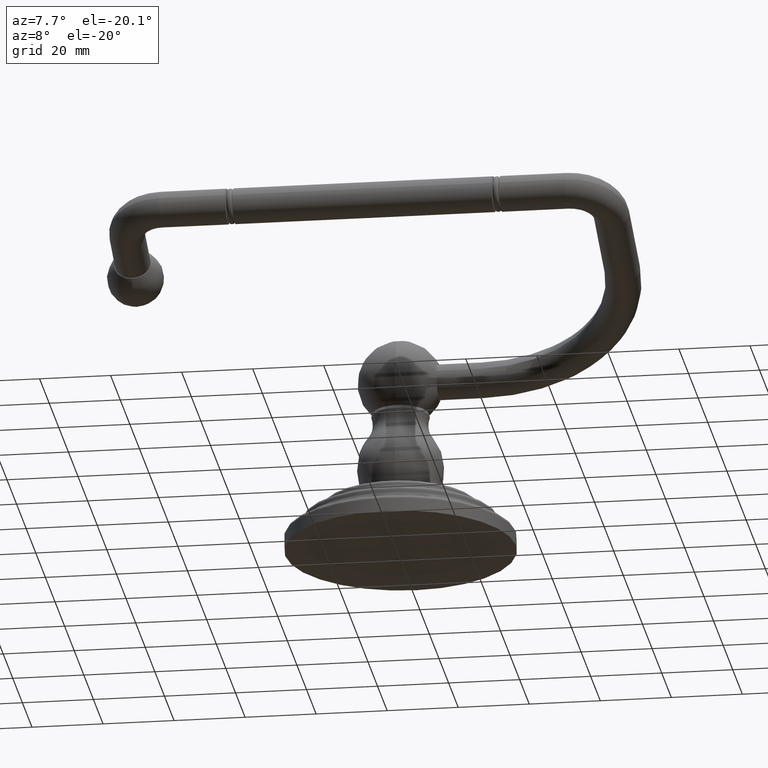
[diagram: clean part render]
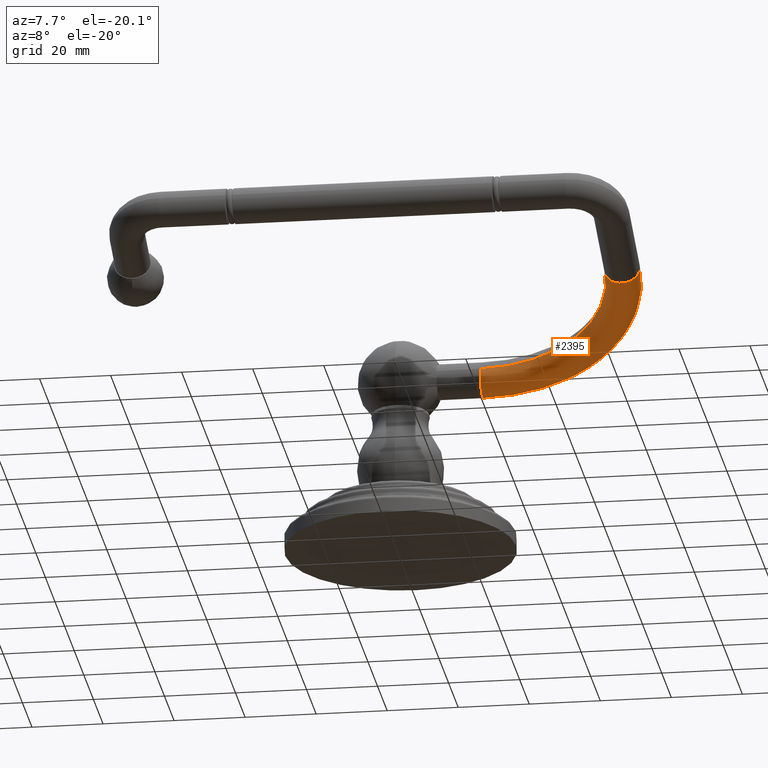
[diagram: same view with one face highlighted and labeled with its STEP entity id]
A machine part, auxiliary view. The second image highlights one B-rep face of the part: STEP entity #2395.
In plain terms, the highlighted toroidal blend (fillet) surface has major radius 45.0088 mm and minor (blend) radius 5.0038 mm.
Its self-contained STEP definition (entity closure, byte-faithful):
#763=CARTESIAN_POINT('',(9.11E-1,0.E0,1.947E0));
#764=DIRECTION('',(1.E0,0.E0,0.E0));
#765=DIRECTION('',(0.E0,-9.396926207859E-1,3.420201433257E-1));
#766=AXIS2_PLACEMENT_3D('',#763,#764,#765);
#771=CARTESIAN_POINT('',(9.11E-1,-1.665135324033E0,2.553059693973E0));
#772=DIRECTION('',(0.E0,-3.420201433257E-1,-9.396926207859E-1));
#773=DIRECTION('',(0.E0,9.396926207859E-1,-3.420201433257E-1));
#774=AXIS2_PLACEMENT_3D('',#771,#772,#773);
#787=CARTESIAN_POINT('',(9.11E-1,-1.665135324033E0,2.553059693973E0));
#788=DIRECTION('',(0.E0,-3.420201433257E-1,-9.396926207859E-1));
#789=DIRECTION('',(0.E0,9.396926207859E-1,-3.420201433257E-1));
#790=AXIS2_PLACEMENT_3D('',#787,#788,#789);
#810=CARTESIAN_POINT('',(2.683E0,-1.665135324033E0,2.553059693973E0));
#811=DIRECTION('',(0.E0,-9.396926207859E-1,3.420201433257E-1));
#812=DIRECTION('',(-1.E0,0.E0,0.E0));
#813=AXIS2_PLACEMENT_3D('',#810,#811,#812);
#1459=CARTESIAN_POINT('',(9.11E-1,1.851194462948E-1,1.879622031765E0));
#1460=CARTESIAN_POINT('',(9.11E-1,-1.851194462948E-1,2.014377968235E0));
#1461=VERTEX_POINT('',#1459);
#1462=VERTEX_POINT('',#1460);
#1463=CARTESIAN_POINT('',(2.88E0,-1.665135324033E0,2.553059693973E0));
#1464=CARTESIAN_POINT('',(2.486E0,-1.665135324033E0,2.553059693973E0));
#1465=VERTEX_POINT('',#1463);
#1466=VERTEX_POINT('',#1464);
#2381=CARTESIAN_POINT('',(9.11E-1,-1.665135324033E0,2.553059693973E0));
#2382=DIRECTION('',(0.E0,-3.420201433257E-1,-9.396926207859E-1));
#2383=DIRECTION('',(0.E0,-9.396926207859E-1,3.420201433257E-1));
#2384=AXIS2_PLACEMENT_3D('',#2381,#2382,#2383);
#2385=TOROIDAL_SURFACE('',#2384,1.772E0,1.97E-1);
#2386=ORIENTED_EDGE('',*,*,#2360,.F.);
#2388=ORIENTED_EDGE('',*,*,#2387,.T.);
#2390=ORIENTED_EDGE('',*,*,#2389,.T.);
#2392=ORIENTED_EDGE('',*,*,#2391,.F.);
#2393=EDGE_LOOP('',(#2386,#2388,#2390,#2392));
#2394=FACE_OUTER_BOUND('',#2393,.F.);
#767=CIRCLE('',#766,1.97E-1);
#775=CIRCLE('',#774,1.575E0);
#791=CIRCLE('',#790,1.969E0);
#814=CIRCLE('',#813,1.97E-1);
#2360=EDGE_CURVE('',#1462,#1461,#767,.T.);
#2387=EDGE_CURVE('',#1462,#1466,#775,.T.);
#2389=EDGE_CURVE('',#1466,#1465,#814,.T.);
#2391=EDGE_CURVE('',#1461,#1465,#791,.T.);
#2395=ADVANCED_FACE('',(#2394),#2385,.T.);